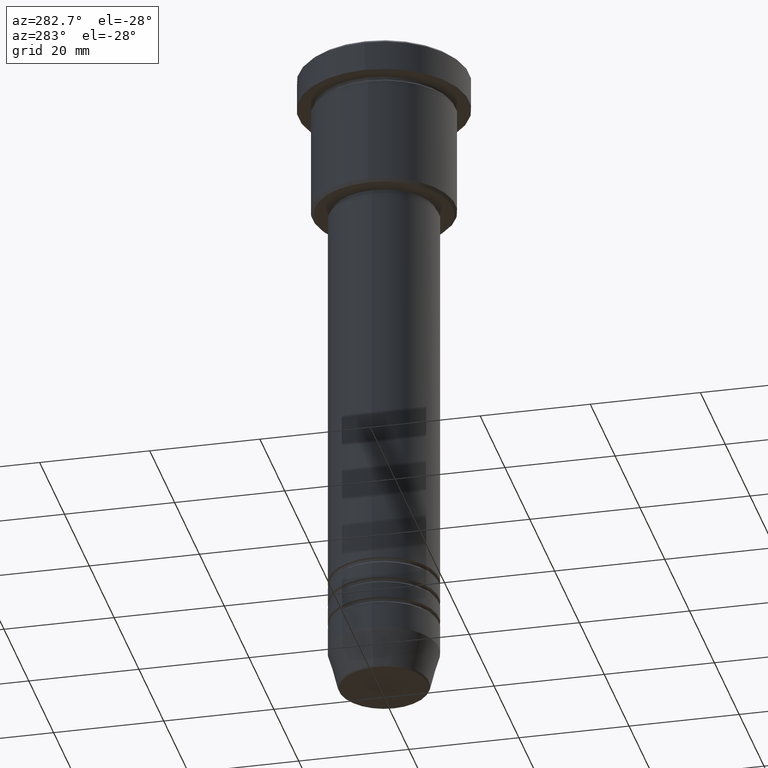
[diagram: clean part render]
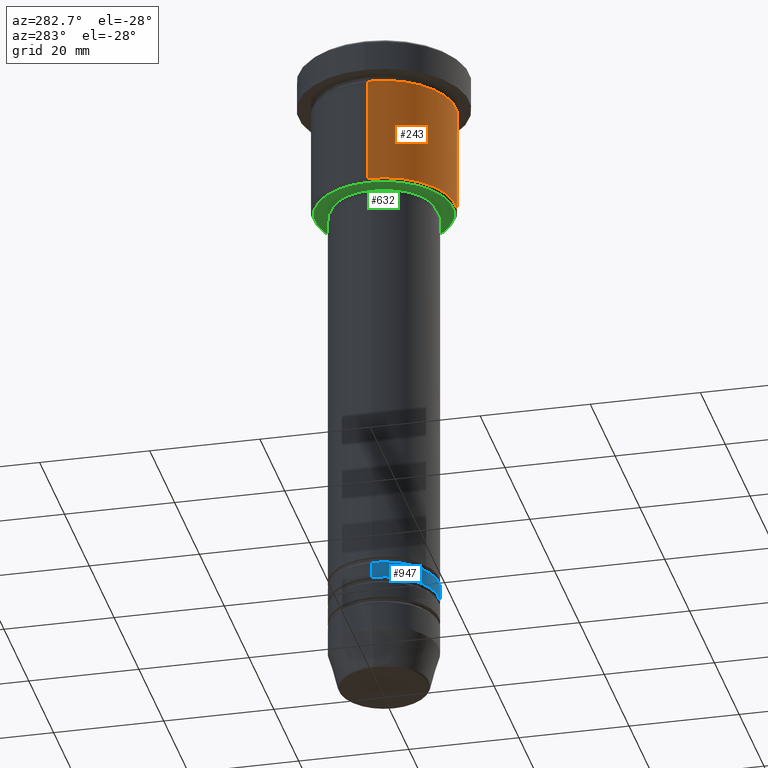
[diagram: same view with three faces highlighted in distinct colors, each labeled with its STEP entity id]
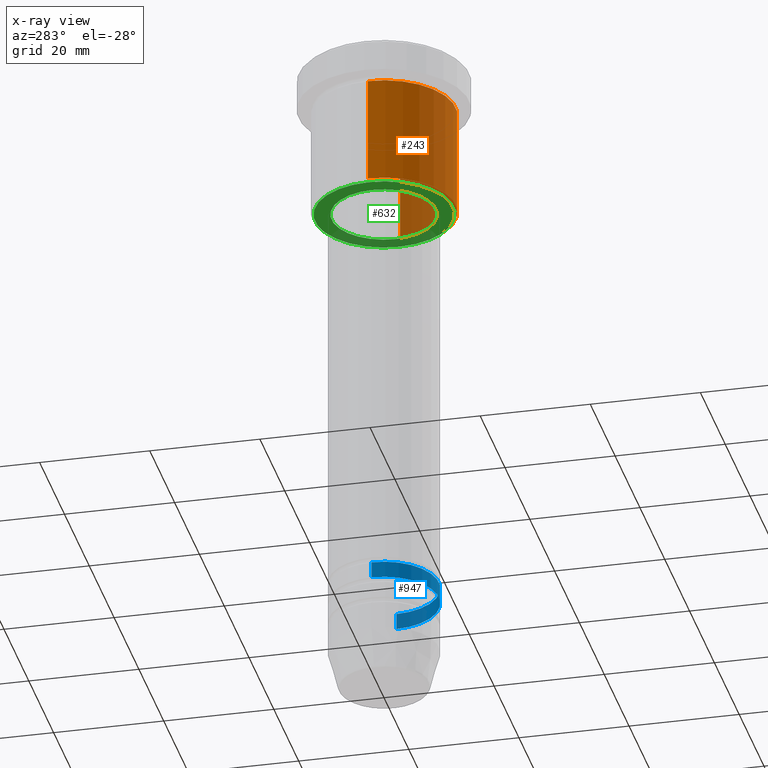
[diagram: x-ray of the same camera — body ghosted, the three highlighted faces saturated]
A machine part, auxiliary view with three faces highlighted in distinct colors.
The next image is the same camera in x-ray (body ghosted, the three faces saturated) — at least one of them is partly hidden behind the body in this view.
Their STEP definitions:

[orange] entity #243 — the highlighted cylindrical surface (partial cylindrical patch) has radius 13 mm, axis along (-0, -0, 1).
#30 = VERTEX_POINT ( 'NONE', #1095 ) ;
#86 = DIRECTION ( 'NONE',  ( -0.000000000000000000, -0.000000000000000000, 1.000000000000000000 ) ) ;
#90 = VECTOR ( 'NONE', #399, 1000.000000000000000 ) ;
#96 = DIRECTION ( 'NONE',  ( 1.000000000000000000, 0.000000000000000000, 0.000000000000000000 ) ) ;
#164 = AXIS2_PLACEMENT_3D ( 'NONE', #1087, #817, #258 ) ;
#182 = VERTEX_POINT ( 'NONE', #901 ) ;
#186 = VECTOR ( 'NONE', #86, 1000.000000000000000 ) ;
#194 = EDGE_CURVE ( 'NONE', #30, #544, #526, .T. ) ;
#210 = CIRCLE ( 'NONE', #164, 13.00000000000000178 ) ;
#243 = ADVANCED_FACE ( 'NONE', ( #377 ), #1172, .T. ) ;
#258 = DIRECTION ( 'NONE',  ( -1.000000000000000000, 0.000000000000000000, 0.000000000000000000 ) ) ;
#368 = EDGE_CURVE ( 'NONE', #706, #544, #945, .T. ) ;
#373 = CARTESIAN_POINT ( 'NONE',  ( -13.00000000000000178, 1.592040838891559293E-15, 0.000000000000000000 ) ) ;
#377 = FACE_OUTER_BOUND ( 'NONE', #518, .T. ) ;
#399 = DIRECTION ( 'NONE',  ( -0.000000000000000000, -0.000000000000000000, 1.000000000000000000 ) ) ;
#400 = ORIENTED_EDGE ( 'NONE', *, *, #368, .T. ) ;
#416 = CARTESIAN_POINT ( 'NONE',  ( 13.00000000000000178, 0.000000000000000000, -6.999999999999995559 ) ) ;
#435 = AXIS2_PLACEMENT_3D ( 'NONE', #1093, #646, #999 ) ;
#447 = CARTESIAN_POINT ( 'NONE',  ( 0.000000000000000000, 0.000000000000000000, -6.999999999999995559 ) ) ;
#518 = EDGE_LOOP ( 'NONE', ( #1033, #790, #400, #741 ) ) ;
#526 = CIRCLE ( 'NONE', #1153, 13.00000000000000178 ) ;
#544 = VERTEX_POINT ( 'NONE', #416 ) ;
#646 = DIRECTION ( 'NONE',  ( -0.000000000000000000, -0.000000000000000000, 1.000000000000000000 ) ) ;
#668 = EDGE_CURVE ( 'NONE', #182, #706, #210, .T. ) ;
#706 = VERTEX_POINT ( 'NONE', #808 ) ;
#741 = ORIENTED_EDGE ( 'NONE', *, *, #194, .F. ) ;
#790 = ORIENTED_EDGE ( 'NONE', *, *, #668, .T. ) ;
#808 = CARTESIAN_POINT ( 'NONE',  ( 13.00000000000000178, 0.000000000000000000, -26.49999999999998579 ) ) ;
#817 = DIRECTION ( 'NONE',  ( -0.000000000000000000, -0.000000000000000000, 1.000000000000000000 ) ) ;
#823 = LINE ( 'NONE', #373, #186 ) ;
#896 = DIRECTION ( 'NONE',  ( -0.000000000000000000, -0.000000000000000000, 1.000000000000000000 ) ) ;
#901 = CARTESIAN_POINT ( 'NONE',  ( -13.00000000000000178, 1.592040838891559293E-15, -26.49999999999998579 ) ) ;
#940 = CARTESIAN_POINT ( 'NONE',  ( 13.00000000000000178, 0.000000000000000000, 0.000000000000000000 ) ) ;
#945 = LINE ( 'NONE', #940, #90 ) ;
#999 = DIRECTION ( 'NONE',  ( 1.000000000000000000, 0.000000000000000000, 0.000000000000000000 ) ) ;
#1033 = ORIENTED_EDGE ( 'NONE', *, *, #1040, .F. ) ;
#1040 = EDGE_CURVE ( 'NONE', #182, #30, #823, .T. ) ;
#1087 = CARTESIAN_POINT ( 'NONE',  ( 0.000000000000000000, 0.000000000000000000, -26.49999999999998579 ) ) ;
#1093 = CARTESIAN_POINT ( 'NONE',  ( 0.000000000000000000, 0.000000000000000000, 0.000000000000000000 ) ) ;
#1095 = CARTESIAN_POINT ( 'NONE',  ( -13.00000000000000178, 1.592040838891559293E-15, -6.999999999999995559 ) ) ;
#1153 = AXIS2_PLACEMENT_3D ( 'NONE', #447, #896, #96 ) ;
#1172 = CYLINDRICAL_SURFACE ( 'NONE', #435, 13.00000000000000178 ) ;

[blue] entity #947 — the highlighted cylindrical surface (partial cylindrical patch) has radius 10 mm, axis along (-0, -0, 1).
#52 = DIRECTION ( 'NONE',  ( -0.000000000000000000, -0.000000000000000000, 1.000000000000000000 ) ) ;
#89 = CARTESIAN_POINT ( 'NONE',  ( 10.00000000000000178, 0.000000000000000000, -104.9999999999999147 ) ) ;
#148 = VERTEX_POINT ( 'NONE', #89 ) ;
#233 = AXIS2_PLACEMENT_3D ( 'NONE', #871, #52, #912 ) ;
#241 = DIRECTION ( 'NONE',  ( -0.000000000000000000, -0.000000000000000000, 1.000000000000000000 ) ) ;
#259 = EDGE_LOOP ( 'NONE', ( #449, #576, #1088, #309 ) ) ;
#297 = VERTEX_POINT ( 'NONE', #678 ) ;
#309 = ORIENTED_EDGE ( 'NONE', *, *, #759, .F. ) ;
#328 = DIRECTION ( 'NONE',  ( -0.000000000000000000, -0.000000000000000000, 1.000000000000000000 ) ) ;
#362 = VECTOR ( 'NONE', #487, 1000.000000000000000 ) ;
#385 = AXIS2_PLACEMENT_3D ( 'NONE', #771, #241, #1049 ) ;
#391 = EDGE_CURVE ( 'NONE', #148, #297, #925, .T. ) ;
#405 = CARTESIAN_POINT ( 'NONE',  ( 0.000000000000000000, 0.000000000000000000, -101.9999999999999005 ) ) ;
#407 = CARTESIAN_POINT ( 'NONE',  ( 10.00000000000000178, 0.000000000000000000, 0.000000000000000000 ) ) ;
#422 = FACE_OUTER_BOUND ( 'NONE', #259, .T. ) ;
#438 = AXIS2_PLACEMENT_3D ( 'NONE', #405, #830, #843 ) ;
#449 = ORIENTED_EDGE ( 'NONE', *, *, #1000, .F. ) ;
#457 = CARTESIAN_POINT ( 'NONE',  ( -10.00000000000000000, 1.224646799147353256E-15, -101.9999999999999005 ) ) ;
#487 = DIRECTION ( 'NONE',  ( -0.000000000000000000, -0.000000000000000000, 1.000000000000000000 ) ) ;
#576 = ORIENTED_EDGE ( 'NONE', *, *, #1019, .T. ) ;
#608 = CIRCLE ( 'NONE', #233, 10.00000000000000178 ) ;
#645 = VERTEX_POINT ( 'NONE', #457 ) ;
#678 = CARTESIAN_POINT ( 'NONE',  ( 10.00000000000000000, 0.000000000000000000, -101.9999999999999005 ) ) ;
#692 = VECTOR ( 'NONE', #328, 1000.000000000000000 ) ;
#703 = CYLINDRICAL_SURFACE ( 'NONE', #385, 10.00000000000000178 ) ;
#759 = EDGE_CURVE ( 'NONE', #645, #297, #952, .T. ) ;
#771 = CARTESIAN_POINT ( 'NONE',  ( 0.000000000000000000, 0.000000000000000000, 0.000000000000000000 ) ) ;
#776 = LINE ( 'NONE', #1136, #692 ) ;
#830 = DIRECTION ( 'NONE',  ( -0.000000000000000000, -0.000000000000000000, 1.000000000000000000 ) ) ;
#843 = DIRECTION ( 'NONE',  ( 1.000000000000000000, 0.000000000000000000, 0.000000000000000000 ) ) ;
#871 = CARTESIAN_POINT ( 'NONE',  ( 0.000000000000000000, 0.000000000000000000, -104.9999999999999147 ) ) ;
#912 = DIRECTION ( 'NONE',  ( 1.000000000000000000, 0.000000000000000000, 0.000000000000000000 ) ) ;
#925 = LINE ( 'NONE', #407, #362 ) ;
#947 = ADVANCED_FACE ( 'NONE', ( #422 ), #703, .T. ) ;
#952 = CIRCLE ( 'NONE', #438, 10.00000000000000000 ) ;
#1000 = EDGE_CURVE ( 'NONE', #1005, #645, #776, .T. ) ;
#1005 = VERTEX_POINT ( 'NONE', #1151 ) ;
#1019 = EDGE_CURVE ( 'NONE', #1005, #148, #608, .T. ) ;
#1049 = DIRECTION ( 'NONE',  ( 1.000000000000000000, 0.000000000000000000, 0.000000000000000000 ) ) ;
#1088 = ORIENTED_EDGE ( 'NONE', *, *, #391, .T. ) ;
#1136 = CARTESIAN_POINT ( 'NONE',  ( -10.00000000000000178, 1.224646799147353454E-15, 0.000000000000000000 ) ) ;
#1151 = CARTESIAN_POINT ( 'NONE',  ( -10.00000000000000178, 1.224646799147353454E-15, -104.9999999999999147 ) ) ;

[green] entity #632 — the highlighted planar face has unit normal (0, 0, -1).
#2 = PLANE ( 'NONE',  #1083 ) ;
#94 = FACE_BOUND ( 'NONE', #561, .T. ) ;
#149 = AXIS2_PLACEMENT_3D ( 'NONE', #293, #218, #403 ) ;
#168 = DIRECTION ( 'NONE',  ( -1.000000000000000000, 0.000000000000000000, 0.000000000000000000 ) ) ;
#218 = DIRECTION ( 'NONE',  ( -0.000000000000000000, -0.000000000000000000, 1.000000000000000000 ) ) ;
#232 = AXIS2_PLACEMENT_3D ( 'NONE', #928, #1110, #482 ) ;
#267 = AXIS2_PLACEMENT_3D ( 'NONE', #993, #727, #168 ) ;
#293 = CARTESIAN_POINT ( 'NONE',  ( 0.000000000000000000, 0.000000000000000000, -27.00000000000001066 ) ) ;
#350 = CARTESIAN_POINT ( 'NONE',  ( 12.49999999999998579, 0.000000000000000000, -27.00000000000000711 ) ) ;
#374 = DIRECTION ( 'NONE',  ( 0.000000000000000000, 0.000000000000000000, -1.000000000000000000 ) ) ;
#395 = CARTESIAN_POINT ( 'NONE',  ( -9.500000000000001776, 1.163414459189985682E-15, -27.00000000000001066 ) ) ;
#403 = DIRECTION ( 'NONE',  ( 1.000000000000000000, 0.000000000000000000, 0.000000000000000000 ) ) ;
#434 = VERTEX_POINT ( 'NONE', #395 ) ;
#445 = CARTESIAN_POINT ( 'NONE',  ( 0.000000000000000000, 13.00000000000000000, -27.00000000000000711 ) ) ;
#482 = DIRECTION ( 'NONE',  ( -1.000000000000000000, 0.000000000000000000, 0.000000000000000000 ) ) ;
#504 = DIRECTION ( 'NONE',  ( -0.000000000000000000, -0.000000000000000000, 1.000000000000000000 ) ) ;
#530 = CIRCLE ( 'NONE', #232, 12.49999999999998579 ) ;
#550 = FACE_OUTER_BOUND ( 'NONE', #852, .T. ) ;
#561 = EDGE_LOOP ( 'NONE', ( #811, #926 ) ) ;
#632 = ADVANCED_FACE ( 'NONE', ( #550, #94 ), #2, .T. ) ;
#644 = CIRCLE ( 'NONE', #267, 12.49999999999998579 ) ;
#661 = VERTEX_POINT ( 'NONE', #350 ) ;
#675 = CIRCLE ( 'NONE', #149, 9.500000000000001776 ) ;
#705 = EDGE_CURVE ( 'NONE', #1150, #661, #644, .T. ) ;
#721 = VERTEX_POINT ( 'NONE', #1180 ) ;
#724 = EDGE_CURVE ( 'NONE', #661, #1150, #530, .T. ) ;
#727 = DIRECTION ( 'NONE',  ( 0.000000000000000000, 0.000000000000000000, -1.000000000000000000 ) ) ;
#784 = CIRCLE ( 'NONE', #838, 9.500000000000001776 ) ;
#785 = DIRECTION ( 'NONE',  ( 1.000000000000000000, 0.000000000000000000, 0.000000000000000000 ) ) ;
#791 = CARTESIAN_POINT ( 'NONE',  ( 0.000000000000000000, 0.000000000000000000, -27.00000000000001066 ) ) ;
#811 = ORIENTED_EDGE ( 'NONE', *, *, #1179, .T. ) ;
#838 = AXIS2_PLACEMENT_3D ( 'NONE', #791, #504, #785 ) ;
#852 = EDGE_LOOP ( 'NONE', ( #1112, #980 ) ) ;
#920 = DIRECTION ( 'NONE',  ( -1.000000000000000000, 0.000000000000000000, -0.000000000000000000 ) ) ;
#926 = ORIENTED_EDGE ( 'NONE', *, *, #992, .T. ) ;
#928 = CARTESIAN_POINT ( 'NONE',  ( 0.000000000000000000, 0.000000000000000000, -27.00000000000000711 ) ) ;
#980 = ORIENTED_EDGE ( 'NONE', *, *, #705, .T. ) ;
#992 = EDGE_CURVE ( 'NONE', #434, #721, #784, .T. ) ;
#993 = CARTESIAN_POINT ( 'NONE',  ( 0.000000000000000000, 0.000000000000000000, -27.00000000000000711 ) ) ;
#1083 = AXIS2_PLACEMENT_3D ( 'NONE', #445, #374, #920 ) ;
#1110 = DIRECTION ( 'NONE',  ( 0.000000000000000000, 0.000000000000000000, -1.000000000000000000 ) ) ;
#1112 = ORIENTED_EDGE ( 'NONE', *, *, #724, .T. ) ;
#1150 = VERTEX_POINT ( 'NONE', #1163 ) ;
#1163 = CARTESIAN_POINT ( 'NONE',  ( -12.49999999999998579, 1.561424668912874519E-15, -27.00000000000000711 ) ) ;
#1179 = EDGE_CURVE ( 'NONE', #721, #434, #675, .T. ) ;
#1180 = CARTESIAN_POINT ( 'NONE',  ( 9.500000000000001776, 0.000000000000000000, -27.00000000000001066 ) ) ;